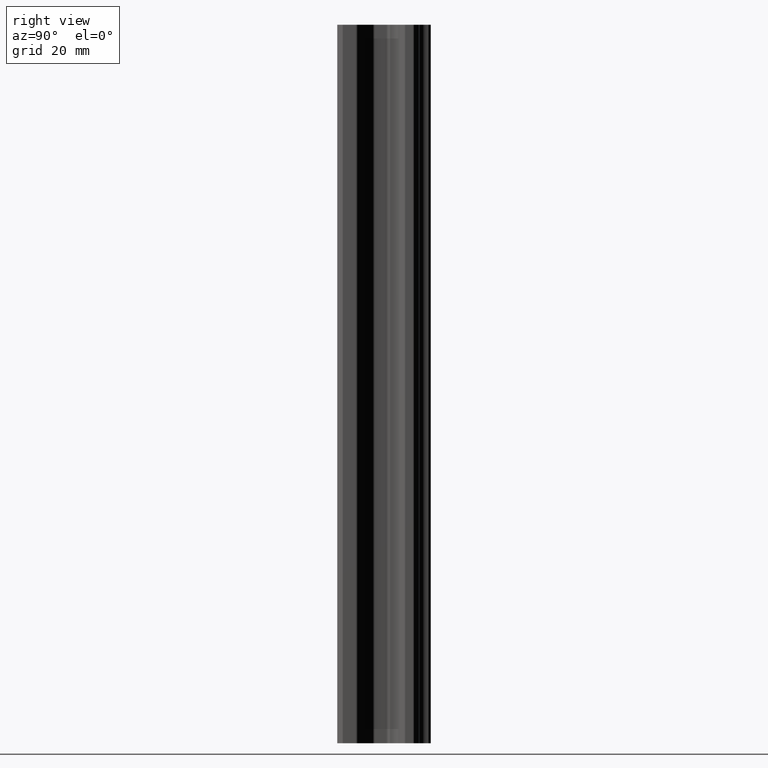
[diagram: clean part render]
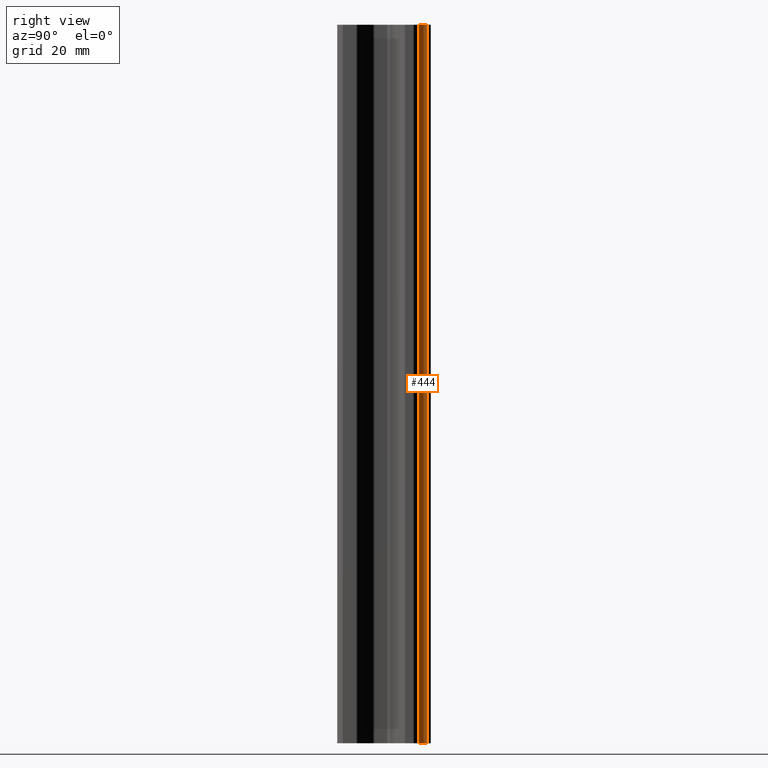
[diagram: same view with one face highlighted and labeled with its STEP entity id]
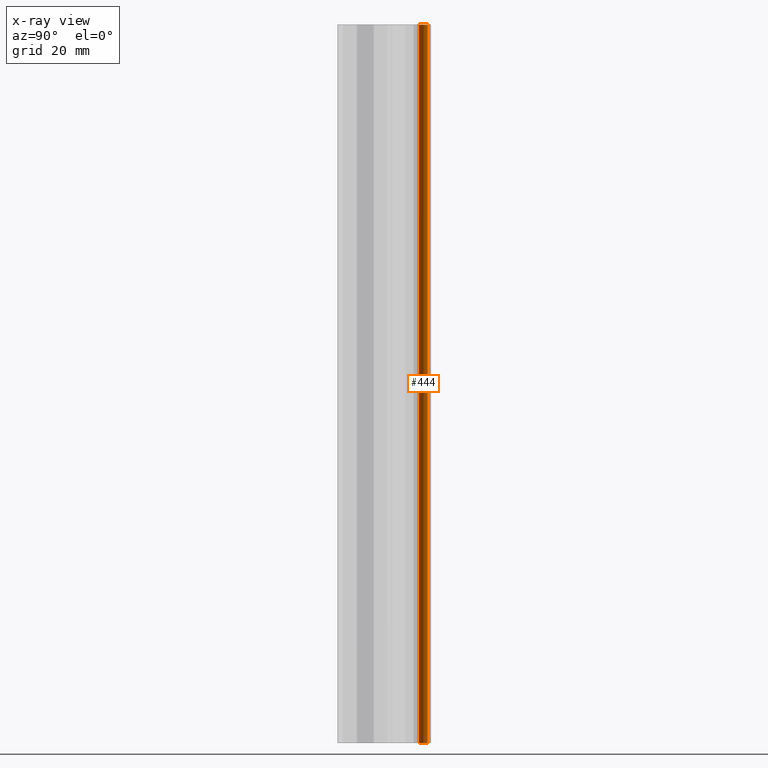
[diagram: x-ray of the same camera — body ghosted, the highlighted face saturated]
A machine part, right view. The second image highlights one B-rep face of the part: STEP entity #444.
The next image is the same camera in x-ray: the body ghosted, the highlighted face saturated — about 0% of this face is hidden behind the body in this view.
In plain terms, the highlighted cylindrical surface (edge-blend (fillet) strip) has radius 2.83 mm, axis along (0, 0, 1).
Its self-contained STEP definition (entity closure, byte-faithful):
#75 = EDGE_CURVE ( 'NONE', #81, #76, #1072, .T. ) ;
#76 = VERTEX_POINT ( 'NONE', #1068 ) ;
#81 = VERTEX_POINT ( 'NONE', #1056 ) ;
#434 = EDGE_CURVE ( 'NONE', #435, #455, #1609, .T. ) ;
#435 = VERTEX_POINT ( 'NONE', #1605 ) ;
#436 = ORIENTED_EDGE ( 'NONE', *, *, #75, .F. ) ;
#444 = ADVANCED_FACE ( 'NONE', ( #1591 ), #1530, .F. ) ;
#445 = EDGE_LOOP ( 'NONE', ( #446, #436, #461, #463 ) ) ;
#446 = ORIENTED_EDGE ( 'NONE', *, *, #447, .F. ) ;
#447 = EDGE_CURVE ( 'NONE', #76, #435, #1524, .T. ) ;
#455 = VERTEX_POINT ( 'NONE', #1509 ) ;
#461 = ORIENTED_EDGE ( 'NONE', *, *, #462, .T. ) ;
#462 = EDGE_CURVE ( 'NONE', #81, #455, #1587, .T. ) ;
#463 = ORIENTED_EDGE ( 'NONE', *, *, #434, .F. ) ;
#1056 = CARTESIAN_POINT ( 'NONE',  ( 12.36828479260851700, -3.289821945183717000, -100.0000000000000000 ) ) ;
#1068 = CARTESIAN_POINT ( 'NONE',  ( 12.36828479260851700, -3.289821945183717000, 100.0000000000000000 ) ) ;
#1069 = DIRECTION ( 'NONE',  ( 0.0000000000000000000, 0.0000000000000000000, 1.000000000000000000 ) ) ;
#1070 = VECTOR ( 'NONE', #1069, 1000.000000000000000 ) ;
#1071 = CARTESIAN_POINT ( 'NONE',  ( 12.36828479280117000, -3.289821945203828400, -100.0000000000000000 ) ) ;
#1072 = LINE ( 'NONE', #1071, #1070 ) ;
#1509 = CARTESIAN_POINT ( 'NONE',  ( 9.919505054833081200, -0.8410422075346731800, -100.0000000000000000 ) ) ;
#1521 = DIRECTION ( 'NONE',  ( 1.000000000000000000, 8.811537090871593000E-016, 0.0000000000000000000 ) ) ;
#1522 = DIRECTION ( 'NONE',  ( 0.0000000000000000000, 0.0000000000000000000, -1.000000000000000000 ) ) ;
#1523 = AXIS2_PLACEMENT_3D ( 'NONE', #1529, #1522, #1521 ) ;
#1524 = CIRCLE ( 'NONE', #1523, 2.829999999999999200 ) ;
#1525 = DIRECTION ( 'NONE',  ( 1.000000000000000000, 0.0000000000000000000, 0.0000000000000000000 ) ) ;
#1526 = DIRECTION ( 'NONE',  ( 0.0000000000000000000, 0.0000000000000000000, 1.000000000000000000 ) ) ;
#1527 = CARTESIAN_POINT ( 'NONE',  ( 12.72671501738999900, -0.4826119826072999800, -100.0000000000000000 ) ) ;
#1528 = AXIS2_PLACEMENT_3D ( 'NONE', #1527, #1526, #1525 ) ;
#1529 = CARTESIAN_POINT ( 'NONE',  ( 12.72671501738999900, -0.4826119826072999800, 100.0000000000000000 ) ) ;
#1530 = CYLINDRICAL_SURFACE ( 'NONE', #1528, 2.829999999999999200 ) ;
#1583 = DIRECTION ( 'NONE',  ( 1.000000000000000000, 8.811537090871593000E-016, 0.0000000000000000000 ) ) ;
#1584 = DIRECTION ( 'NONE',  ( 0.0000000000000000000, 0.0000000000000000000, -1.000000000000000000 ) ) ;
#1585 = CARTESIAN_POINT ( 'NONE',  ( 12.72671501738999900, -0.4826119826072999800, -100.0000000000000000 ) ) ;
#1586 = AXIS2_PLACEMENT_3D ( 'NONE', #1585, #1584, #1583 ) ;
#1587 = CIRCLE ( 'NONE', #1586, 2.829999999999999200 ) ;
#1591 = FACE_OUTER_BOUND ( 'NONE', #445, .T. ) ;
#1605 = CARTESIAN_POINT ( 'NONE',  ( 9.919505054833081200, -0.8410422075346731800, 100.0000000000000000 ) ) ;
#1606 = DIRECTION ( 'NONE',  ( 0.0000000000000000000, 0.0000000000000000000, -1.000000000000000000 ) ) ;
#1607 = VECTOR ( 'NONE', #1606, 1000.000000000000000 ) ;
#1608 = CARTESIAN_POINT ( 'NONE',  ( 9.919505054829940600, -0.8410422074817635000, -100.0000000000000000 ) ) ;
#1609 = LINE ( 'NONE', #1608, #1607 ) ;